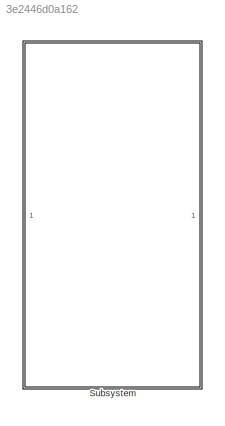
MODEL slx_3e2446d0a162
KIND model
CONFIG AbsTol = auto
CONFIG EnableMultiTasking = off
CONFIG FixedStep = 0.2
CONFIG MaxStep = auto
CONFIG MinStep = auto
CONFIG RelTol = 1e-3
CONFIG SampleTimeConstraint = Unconstrained
CONFIG Solver = FixedStepDiscrete
CONFIG SolverName = FixedStepDiscrete
CONFIG StartTime = 0.0
CONFIG StopTime = 10
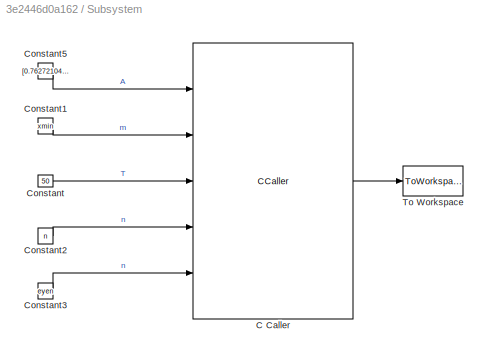
BLOCK [SubSystem] Subsystem
  Ports = []
  RequestExecContextInheritance = off
BLOCK [CCaller] Subsystem/C Caller
  FunctionName = dummy2
  PortSpecificationStruct = %)30     .    Z @   8    (     @         %    "     8    !     0         %  0 "0    $    V    07)G3F%M90  4&]R=$YA;64 4V-O<&4     26YD97@     5'EP90      4VEZ90         .    ,     8    (    !          %    "     $    #     0         0  , ;W5T  X    P    !@    @    $          4    (     0    ,    !         !   P!O=70 #@   #@    &    "     0         !0    @    !    !@    $         $     8   !/=71P=7...<+2658ch>
  Ports = [5, 1]
BLOCK [Constant] Subsystem/Constant
  OutDataTypeStr = Inherit: Inherit via back propagation
  SampleTime = -1
  Value = 50
BLOCK [Constant] Subsystem/Constant1
  OutDataTypeStr = Inherit: Inherit via back propagation
  SampleTime = -1
  Value = xmin
BLOCK [Constant] Subsystem/Constant2
  OutDataTypeStr = Inherit: Inherit via back propagation
  SampleTime = -1
  Value = n
BLOCK [Constant] Subsystem/Constant3
  OutDataTypeStr = Inherit: Inherit via back propagation
  SampleTime = -1
  Value = eyen
BLOCK [Constant] Subsystem/Constant5
  OutDataTypeStr = Inherit: Inherit via back propagation
  SampleTime = -1
  Value = [0.762721047593857	0.114882546593898	0.00247654474066823	2.09380749408769e-05	9.42229417535085e-08	2.63060135287668e-10	0.459613939727602	0.0198131117128797	0.000251260056028671	1.50757506761672e-06	5.26123024735364e-09	1.19993006342024e-11\n0.114882546593898	0.765197592334525	0.114903484668839	0.00247663896360998	2.09383380010122e-05	9.42229417535096e-08	0.0198131117128796	0.459865199783630	0.0198...<+2417ch>
BLOCK [ToWorkspace] Subsystem/To Workspace
  Decimation = 4
  FixptAsFi = on
  MaxDataPoints = inf
  Ports = [1]
  SampleTime = -1
  Save2DSignal = 2-D array (concatenate along first dimension)
  SaveFormat = Timeseries
  VariableName = simout
LINE Subsystem/C Caller:1 -> Subsystem/To Workspace:1
LINE Subsystem/Constant1:1 -> Subsystem/C Caller:2
LINE Subsystem/Constant2:1 -> Subsystem/C Caller:4
LINE Subsystem/Constant3:1 -> Subsystem/C Caller:5
LINE Subsystem/Constant5:1 -> Subsystem/C Caller:1
LINE Subsystem/Constant:1 -> Subsystem/C Caller:3
